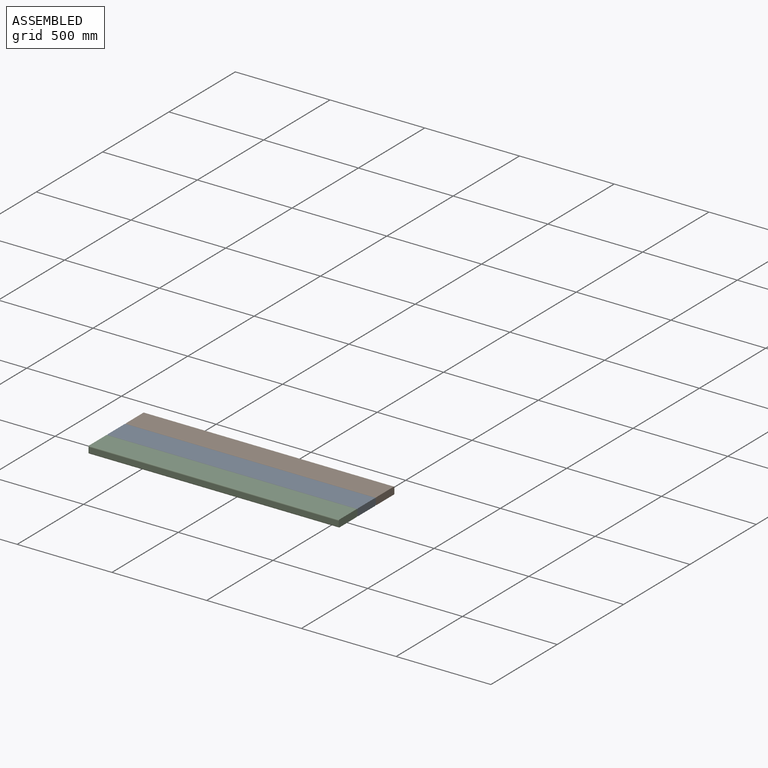
[diagram: assembled view]
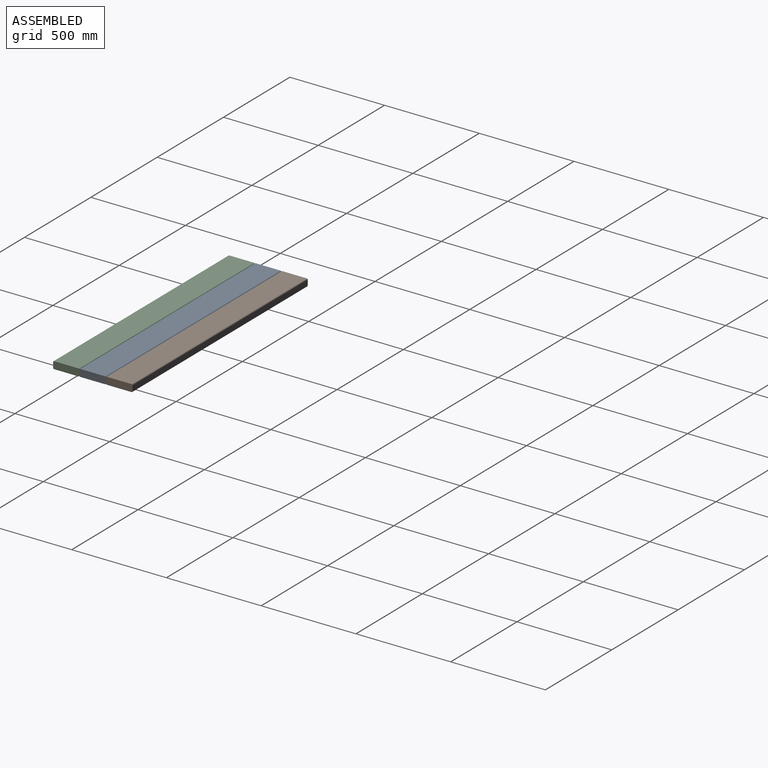
[diagram: assembled view, second angle]
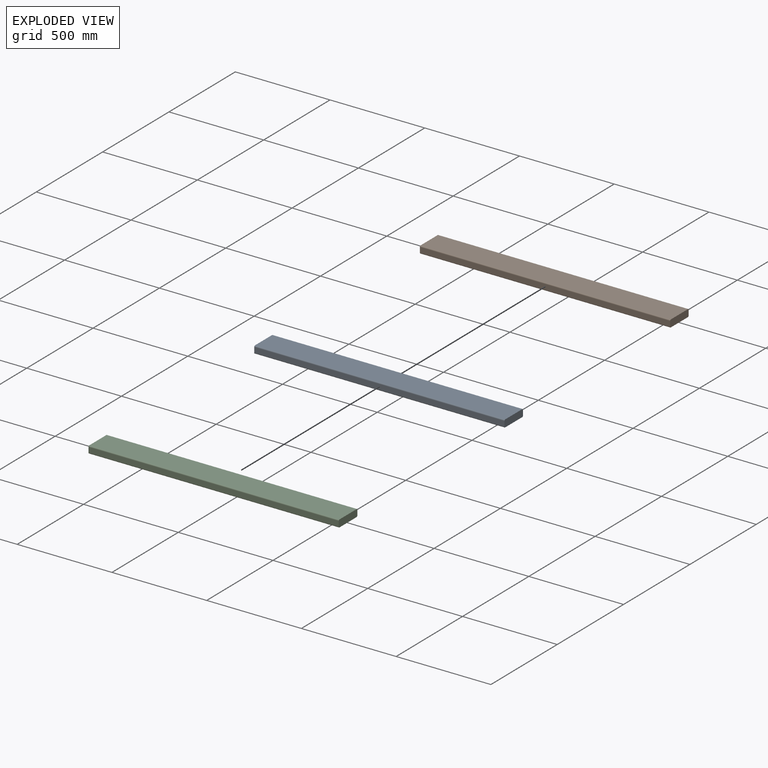
[diagram: exploded view]
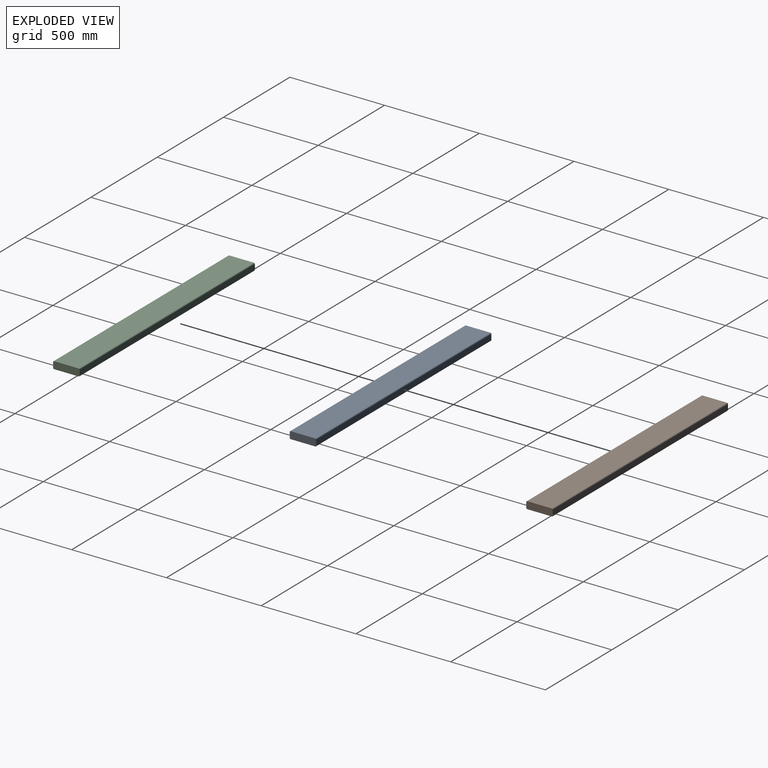
[diagram: exploded view, second angle]
ASSEMBLY  parts=3 mates=2
PART A: 10 faces, bbox 1320.8x139.7x38.1 mm
  f0: plane 1320.8x27.94mm, normal (0,1,0), area 36903.2mm2, adj f1,f3,f7,f9
  f1: plane 139.7x38.1mm, normal (-1,0,0), area 5300.4mm2, adj f0,f2,f4,f5,f6,f7,f8,f9
  f2: plane 1320.8x27.94mm, normal (0,-1,0), area 36903.2mm2, adj f1,f3,f6,f8
  f3: plane 139.7x38.1mm, normal (1,0,0), area 5300.4mm2, adj f0,f2,f4,f5,f6,f7,f8,f9
  f4: plane 1320.8x129.54mm, normal (0,0,1), area 171096.4mm2, adj f1,f3,f8,f9
  f5: plane 1320.8x129.54mm, normal (0,0,-1), area 171096.4mm2, adj f1,f3,f6,f7
  f6: cylinder r=5.08mm len=1320.8mm, axis (1,0,0), area 10539.5mm2, adj f1,f2,f3,f5
  f7: cylinder r=5.08mm len=1320.8mm, axis (-1,0,0), area 10539.5mm2, adj f0,f1,f3,f5
  f8: cylinder r=5.08mm len=1320.8mm, axis (-1,0,0), area 10539.5mm2, adj f1,f2,f3,f4
  f9: cylinder r=5.08mm len=1320.8mm, axis (1,0,0), area 10539.5mm2, adj f0,f1,f3,f4
PART B: same geometry as A
PART C: same geometry as A
PLACE A t=(-252.98,-321.46,-7.91)mm
PLACE B t=(-252.98,-181.76,-7.91)mm
PLACE C t=(-252.98,-461.16,-7.91)mm
MATE fastened A.f2 <-> C.f0  axis (0,-1,0) through (-252.98,-461.16,11.14)mm
MATE fastened B.f2 <-> A.f0  axis (0,-1,0) through (-252.98,-321.46,11.14)mm
